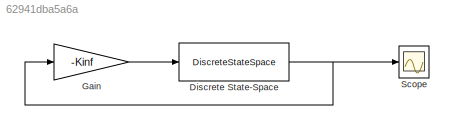
MODEL slx_62941dba5a6a
KIND model
CONFIG AbsTol = auto
CONFIG EnableMultiTasking = off
CONFIG FixedStep = auto
CONFIG MaxStep = auto
CONFIG MinStep = auto
CONFIG RelTol = 1e-3
CONFIG SampleTimeConstraint = Unconstrained
CONFIG Solver = VariableStepAuto
CONFIG SolverName = VariableStepAuto
CONFIG StartTime = 0.0
CONFIG StopTime = 10
BLOCK [DiscreteStateSpace] Discrete State-Space
  A = A_d
  B = B_d
  C = C
  D = D
  InitialCondition = x0
  SampleTime = t_sample
BLOCK [Gain] Gain
  Gain = -Kinf
  Multiplication = Matrix(K*u)
BLOCK [Scope] Scope
  Floating = off
  NumInputPorts = 1
  Ports = [1]
  ScopeSpecificationString = Simulink.scopes.TimeScopeBlockCfg('CurrentConfiguration', extmgr.ConfigurationSet(extmgr.Configuration('Core','General UI',true),extmgr.Configuration('Core','Source UI',true),extmgr.Configuration('Sources','WiredSimulink',true),extmgr.Configuration('Visuals','Time Domain',true,'SerializedDisplays',{struct('MinYLimReal','-7.84983','MaxYLimReal','7.81665','YLabelReal','','MinYLimMag','0.00000','MaxY...<+1417ch>
NET Discrete State-Space:1 -> Gain:1, Scope:1
LINE Gain:1 -> Discrete State-Space:1
note: NET lines group one-source signal fan-out (src -> all destinations, sorted); 1:1 wires keep LINE
